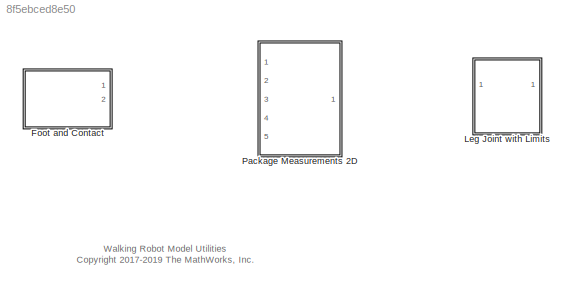
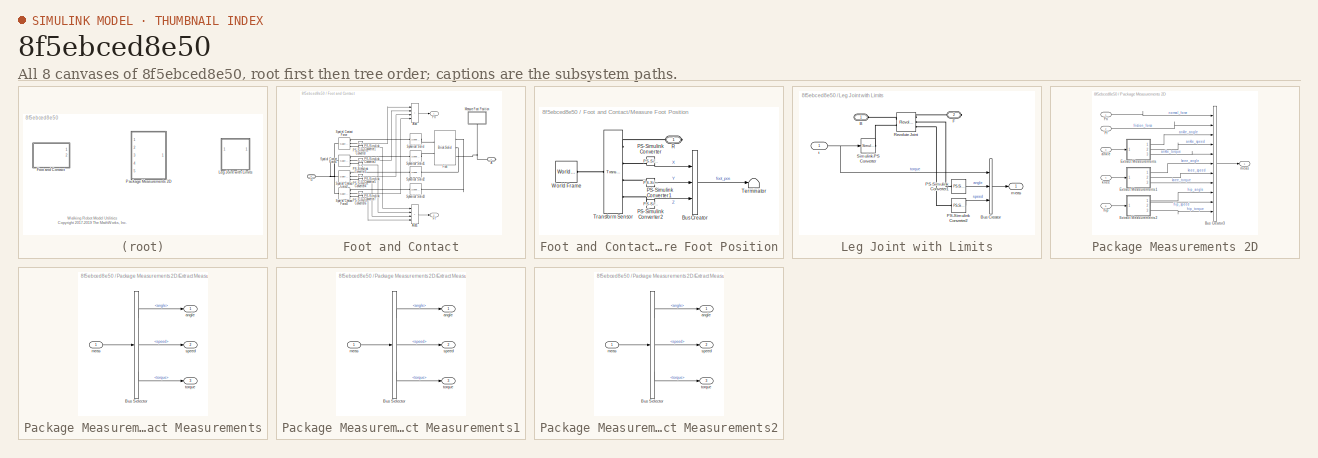
[diagram: thumbnail index - all 8 canvases of the model, root first then tree order]
MODEL slx_8f5ebced8e50
KIND library
CONFIG AbsTol = auto
CONFIG EnableMultiTasking = off
CONFIG FixedStep = auto
CONFIG MaxStep = auto
CONFIG MinStep = auto
CONFIG RelTol = 1e-3
CONFIG SampleTimeConstraint = Unconstrained
CONFIG SolverName = VariableStepAuto
CONFIG StartTime = 0.0
CONFIG StopTime = 10.0
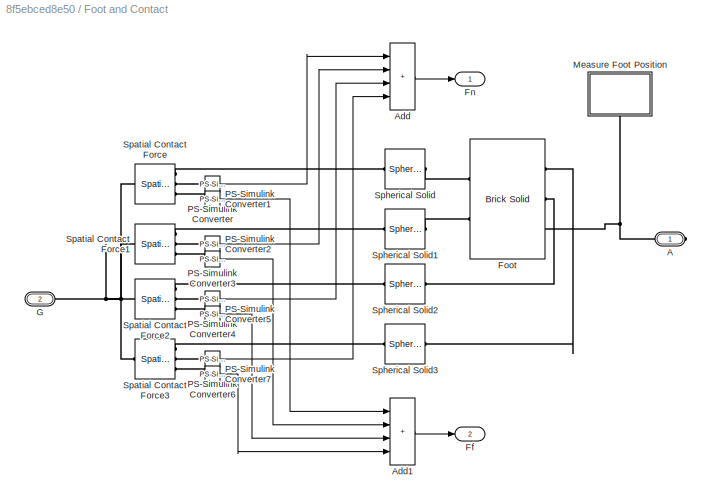
BLOCK [SubSystem] Foot and Contact
  Ports = [0, 2, 0, 0, 0, 1, 1]
  RequestExecContextInheritance = off
BLOCK [PMIOPort] Foot and Contact/A
  Side = Right
BLOCK [Sum] Foot and Contact/Add
  IconShape = rectangular
  Inputs = 4
  Ports = [4, 1]
BLOCK [Sum] Foot and Contact/Add1
  IconShape = rectangular
  Inputs = 4
  Ports = [4, 1]
BLOCK [Outport] Foot and Contact/Ff
  Port = 2
BLOCK [Outport] Foot and Contact/Fn
BLOCK [Reference] Foot and Contact/Foot  REF=sm_lib/Body Elements/Brick Solid
  Ports = [0, 0, 0, 0, 0, 3, 2]
  SourceBlock = sm_lib/Body Elements/Brick Solid
  SourceProductBaseCode = MS
  SourceType = Brick Solid
BLOCK [PMIOPort] Foot and Contact/G
  Port = 2
  Side = Left
BLOCK [SubSystem] Foot and Contact/Measure Foot Position
  NameLocation = right
  Ports = [0, 0, 0, 0, 0, 0, 1]
  RequestExecContextInheritance = off
BLOCK [BusCreator] Foot and Contact/Measure Foot Position/Bus Creator
  DisplayOption = bar
  InheritFromInputs = on
  Inputs = 3
  Ports = [3, 1]
BLOCK [Reference] Foot and Contact/Measure Foot Position/PS-Simulink Converter  REF=nesl_utility/PS-Simulink
Converter
  Ports = [0, 1, 0, 0, 0, 1]
  SourceBlock = nesl_utility/PS-Simulink\nConverter
  SourceProductBaseCode = PW,SS
  SourceType = PS-Simulink\nConverter
BLOCK [Reference] Foot and Contact/Measure Foot Position/PS-Simulink Converter1  REF=nesl_utility/PS-Simulink
Converter
  Ports = [0, 1, 0, 0, 0, 1]
  SourceBlock = nesl_utility/PS-Simulink\nConverter
  SourceProductBaseCode = PW,SS
  SourceType = PS-Simulink\nConverter
BLOCK [Reference] Foot and Contact/Measure Foot Position/PS-Simulink Converter2  REF=nesl_utility/PS-Simulink
Converter
  Ports = [0, 1, 0, 0, 0, 1]
  SourceBlock = nesl_utility/PS-Simulink\nConverter
  SourceProductBaseCode = PW,SS
  SourceType = PS-Simulink\nConverter
BLOCK [PMIOPort] Foot and Contact/Measure Foot Position/R
  Side = Right
BLOCK [Terminator] Foot and Contact/Measure Foot Position/Terminator
BLOCK [Reference] Foot and Contact/Measure Foot Position/Transform Sensor  REF=sm_lib/Frames and
Transforms/Transform
Sensor
  NameLocation = top
  Ports = [0, 0, 0, 0, 0, 1, 4]
  SourceBlock = sm_lib/Frames and\nTransforms/Transform\nSensor
  SourceProductBaseCode = MS
  SourceType = Transform\nSensor
BLOCK [Reference] Foot and Contact/Measure Foot Position/World Frame  REF=sm_lib/Frames and
Transforms/World Frame
  Ports = [0, 0, 0, 0, 0, 0, 1]
  SourceBlock = sm_lib/Frames and\nTransforms/World Frame
  SourceProductBaseCode = MS
  SourceType = World Frame
BLOCK [Reference] Foot and Contact/PS-Simulink Converter  REF=nesl_utility/PS-Simulink
Converter
  Ports = [0, 1, 0, 0, 0, 1]
  SourceBlock = nesl_utility/PS-Simulink\nConverter
  SourceProductBaseCode = PW,SS
  SourceType = PS-Simulink\nConverter
BLOCK [Reference] Foot and Contact/PS-Simulink Converter1  REF=nesl_utility/PS-Simulink
Converter
  Ports = [0, 1, 0, 0, 0, 1]
  SourceBlock = nesl_utility/PS-Simulink\nConverter
  SourceProductBaseCode = PW,SS
  SourceType = PS-Simulink\nConverter
BLOCK [Reference] Foot and Contact/PS-Simulink Converter2  REF=nesl_utility/PS-Simulink
Converter
  Ports = [0, 1, 0, 0, 0, 1]
  SourceBlock = nesl_utility/PS-Simulink\nConverter
  SourceProductBaseCode = PW,SS
  SourceType = PS-Simulink\nConverter
BLOCK [Reference] Foot and Contact/PS-Simulink Converter3  REF=nesl_utility/PS-Simulink
Converter
  Ports = [0, 1, 0, 0, 0, 1]
  SourceBlock = nesl_utility/PS-Simulink\nConverter
  SourceProductBaseCode = PW,SS
  SourceType = PS-Simulink\nConverter
BLOCK [Reference] Foot and Contact/PS-Simulink Converter4  REF=nesl_utility/PS-Simulink
Converter
  Ports = [0, 1, 0, 0, 0, 1]
  SourceBlock = nesl_utility/PS-Simulink\nConverter
  SourceProductBaseCode = PW,SS
  SourceType = PS-Simulink\nConverter
BLOCK [Reference] Foot and Contact/PS-Simulink Converter5  REF=nesl_utility/PS-Simulink
Converter
  Ports = [0, 1, 0, 0, 0, 1]
  SourceBlock = nesl_utility/PS-Simulink\nConverter
  SourceProductBaseCode = PW,SS
  SourceType = PS-Simulink\nConverter
BLOCK [Reference] Foot and Contact/PS-Simulink Converter6  REF=nesl_utility/PS-Simulink
Converter
  Ports = [0, 1, 0, 0, 0, 1]
  SourceBlock = nesl_utility/PS-Simulink\nConverter
  SourceProductBaseCode = PW,SS
  SourceType = PS-Simulink\nConverter
BLOCK [Reference] Foot and Contact/PS-Simulink Converter7  REF=nesl_utility/PS-Simulink
Converter
  Ports = [0, 1, 0, 0, 0, 1]
  SourceBlock = nesl_utility/PS-Simulink\nConverter
  SourceProductBaseCode = PW,SS
  SourceType = PS-Simulink\nConverter
BLOCK [Reference] Foot and Contact/Spatial Contact Force  REF=sm_lib/Forces and
Torques/Spatial
Contact Force
  Ports = [0, 0, 0, 0, 0, 1, 3]
  SourceBlock = sm_lib/Forces and\nTorques/Spatial\nContact Force
  SourceProductBaseCode = MS
  SourceType = Spatial\nContact Force
BLOCK [Reference] Foot and Contact/Spatial Contact Force1  REF=sm_lib/Forces and
Torques/Spatial
Contact Force
  Ports = [0, 0, 0, 0, 0, 1, 3]
  SourceBlock = sm_lib/Forces and\nTorques/Spatial\nContact Force
  SourceProductBaseCode = MS
  SourceType = Spatial\nContact Force
BLOCK [Reference] Foot and Contact/Spatial Contact Force2  REF=sm_lib/Forces and
Torques/Spatial
Contact Force
  Ports = [0, 0, 0, 0, 0, 1, 3]
  SourceBlock = sm_lib/Forces and\nTorques/Spatial\nContact Force
  SourceProductBaseCode = MS
  SourceType = Spatial\nContact Force
BLOCK [Reference] Foot and Contact/Spatial Contact Force3  REF=sm_lib/Forces and
Torques/Spatial
Contact Force
  Ports = [0, 0, 0, 0, 0, 1, 3]
  SourceBlock = sm_lib/Forces and\nTorques/Spatial\nContact Force
  SourceProductBaseCode = MS
  SourceType = Spatial\nContact Force
BLOCK [Reference] Foot and Contact/Spherical Solid  REF=sm_lib/Body Elements/Spherical Solid
  Ports = [0, 0, 0, 0, 0, 1, 1]
  SourceBlock = sm_lib/Body Elements/Spherical Solid
  SourceProductBaseCode = MS
  SourceType = Spherical Solid
BLOCK [Reference] Foot and Contact/Spherical Solid1  REF=sm_lib/Body Elements/Spherical Solid
  Ports = [0, 0, 0, 0, 0, 1, 1]
  SourceBlock = sm_lib/Body Elements/Spherical Solid
  SourceProductBaseCode = MS
  SourceType = Spherical Solid
BLOCK [Reference] Foot and Contact/Spherical Solid2  REF=sm_lib/Body Elements/Spherical Solid
  Ports = [0, 0, 0, 0, 0, 1, 1]
  SourceBlock = sm_lib/Body Elements/Spherical Solid
  SourceProductBaseCode = MS
  SourceType = Spherical Solid
BLOCK [Reference] Foot and Contact/Spherical Solid3  REF=sm_lib/Body Elements/Spherical Solid
  Ports = [0, 0, 0, 0, 0, 1, 1]
  SourceBlock = sm_lib/Body Elements/Spherical Solid
  SourceProductBaseCode = MS
  SourceType = Spherical Solid
BLOCK [SubSystem] Leg Joint with Limits
  Ports = [1, 1, 0, 0, 0, 1, 1]
  RequestExecContextInheritance = off
  VariantControl = actuatorType == 2
BLOCK [PMIOPort] Leg Joint with Limits/B
  Side = Left
BLOCK [BusCreator] Leg Joint with Limits/Bus Creator
  DisplayOption = bar
  InheritFromInputs = on
  Inputs = 3
  Ports = [3, 1]
BLOCK [PMIOPort] Leg Joint with Limits/F
  Port = 2
  Side = Right
BLOCK [Reference] Leg Joint with Limits/PS-Simulink Converter1  REF=nesl_utility/PS-Simulink
Converter
  Ports = [0, 1, 0, 0, 0, 1]
  SourceBlock = nesl_utility/PS-Simulink\nConverter
  SourceProductBaseCode = PW,SS
  SourceType = PS-Simulink\nConverter
BLOCK [Reference] Leg Joint with Limits/PS-Simulink Converter2  REF=nesl_utility/PS-Simulink
Converter
  Ports = [0, 1, 0, 0, 0, 1]
  SourceBlock = nesl_utility/PS-Simulink\nConverter
  SourceProductBaseCode = PW,SS
  SourceType = PS-Simulink\nConverter
BLOCK [Reference] Leg Joint with Limits/Revolute Joint  REF=sm_lib/Joints/Revolute Joint
  Ports = [0, 0, 0, 0, 0, 2, 3]
  SourceBlock = sm_lib/Joints/Revolute Joint
  SourceProductBaseCode = MS
  SourceType = Revolute Joint
BLOCK [Reference] Leg Joint with Limits/Simulink-PS Converter  REF=nesl_utility/Simulink-PS
Converter
  Ports = [1, 0, 0, 0, 0, 0, 1]
  SourceBlock = nesl_utility/Simulink-PS\nConverter
  SourceProductBaseCode = PW,SS
  SourceType = Simulink-PS\nConverter
BLOCK [Outport] Leg Joint with Limits/meas
  VectorParamsAs1DForOutWhenUnconnected = off
BLOCK [Inport] Leg Joint with Limits/t
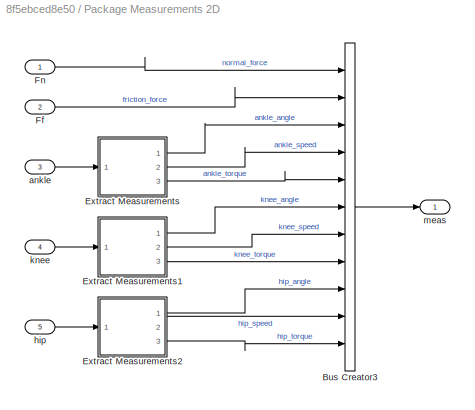
BLOCK [SubSystem] Package Measurements 2D
  Ports = [5, 1]
  RequestExecContextInheritance = off
BLOCK [BusCreator] Package Measurements 2D/Bus Creator3
  DisplayOption = bar
  InheritFromInputs = on
  Inputs = 11
  Ports = [11, 1]
BLOCK [SubSystem] Package Measurements 2D/Extract Measurements
  Ports = [1, 3]
  RequestExecContextInheritance = off
BLOCK [BusSelector] Package Measurements 2D/Extract Measurements/Bus Selector
  OutputSignals = angle,speed,torque
  Ports = [1, 3]
BLOCK [Outport] Package Measurements 2D/Extract Measurements/angle
  VectorParamsAs1DForOutWhenUnconnected = off
BLOCK [Inport] Package Measurements 2D/Extract Measurements/meas
BLOCK [Outport] Package Measurements 2D/Extract Measurements/speed
  Port = 2
  VectorParamsAs1DForOutWhenUnconnected = off
BLOCK [Outport] Package Measurements 2D/Extract Measurements/torque
  Port = 3
  VectorParamsAs1DForOutWhenUnconnected = off
BLOCK [SubSystem] Package Measurements 2D/Extract Measurements1
  Ports = [1, 3]
  RequestExecContextInheritance = off
BLOCK [BusSelector] Package Measurements 2D/Extract Measurements1/Bus Selector
  OutputSignals = angle,speed,torque
  Ports = [1, 3]
BLOCK [Outport] Package Measurements 2D/Extract Measurements1/angle
  VectorParamsAs1DForOutWhenUnconnected = off
BLOCK [Inport] Package Measurements 2D/Extract Measurements1/meas
BLOCK [Outport] Package Measurements 2D/Extract Measurements1/speed
  Port = 2
  VectorParamsAs1DForOutWhenUnconnected = off
BLOCK [Outport] Package Measurements 2D/Extract Measurements1/torque
  Port = 3
  VectorParamsAs1DForOutWhenUnconnected = off
BLOCK [SubSystem] Package Measurements 2D/Extract Measurements2
  Ports = [1, 3]
  RequestExecContextInheritance = off
BLOCK [BusSelector] Package Measurements 2D/Extract Measurements2/Bus Selector
  OutputSignals = angle,speed,torque
  Ports = [1, 3]
BLOCK [Outport] Package Measurements 2D/Extract Measurements2/angle
  VectorParamsAs1DForOutWhenUnconnected = off
BLOCK [Inport] Package Measurements 2D/Extract Measurements2/meas
BLOCK [Outport] Package Measurements 2D/Extract Measurements2/speed
  Port = 2
  VectorParamsAs1DForOutWhenUnconnected = off
BLOCK [Outport] Package Measurements 2D/Extract Measurements2/torque
  Port = 3
  VectorParamsAs1DForOutWhenUnconnected = off
BLOCK [Inport] Package Measurements 2D/Ff
  Port = 2
BLOCK [Inport] Package Measurements 2D/Fn
BLOCK [Inport] Package Measurements 2D/ankle
  Port = 3
BLOCK [Inport] Package Measurements 2D/hip
  Port = 5
BLOCK [Inport] Package Measurements 2D/knee
  Port = 4
BLOCK [Outport] Package Measurements 2D/meas
  VectorParamsAs1DForOutWhenUnconnected = off
ANNOTATION (root): Walking Robot Model Utilities <copyright redacted>
LINE Foot and Contact/Add1:1 -> Foot and Contact/Ff:1
LINE Foot and Contact/Add:1 -> Foot and Contact/Fn:1
LINE Foot and Contact/Measure Foot Position/Bus Creator:1 -> Foot and Contact/Measure Foot Position/Terminator:1
LINE Foot and Contact/Measure Foot Position/PS-Simulink Converter1:1 -> Foot and Contact/Measure Foot Position/Bus Creator:2
LINE Foot and Contact/Measure Foot Position/PS-Simulink Converter2:1 -> Foot and Contact/Measure Foot Position/Bus Creator:3
LINE Foot and Contact/Measure Foot Position/PS-Simulink Converter:1 -> Foot and Contact/Measure Foot Position/Bus Creator:1
LINE Foot and Contact/PS-Simulink Converter1:1 -> Foot and Contact/Add1:1
LINE Foot and Contact/PS-Simulink Converter2:1 -> Foot and Contact/Add:2
LINE Foot and Contact/PS-Simulink Converter3:1 -> Foot and Contact/Add1:2
LINE Foot and Contact/PS-Simulink Converter4:1 -> Foot and Contact/Add:3
LINE Foot and Contact/PS-Simulink Converter5:1 -> Foot and Contact/Add1:3
LINE Foot and Contact/PS-Simulink Converter6:1 -> Foot and Contact/Add:4
LINE Foot and Contact/PS-Simulink Converter7:1 -> Foot and Contact/Add1:4
LINE Foot and Contact/PS-Simulink Converter:1 -> Foot and Contact/Add:1
LINE Leg Joint with Limits/Bus Creator:1 -> Leg Joint with Limits/meas:1
LINE Leg Joint with Limits/PS-Simulink Converter1:1 -> Leg Joint with Limits/Bus Creator:2
LINE Leg Joint with Limits/PS-Simulink Converter2:1 -> Leg Joint with Limits/Bus Creator:3
NET Leg Joint with Limits/t:1 -> Leg Joint with Limits/Bus Creator:1, Leg Joint with Limits/Simulink-PS Converter:1
LINE Package Measurements 2D/Bus Creator3:1 -> Package Measurements 2D/meas:1
LINE Package Measurements 2D/Extract Measurements/Bus Selector:1 -> Package Measurements 2D/Extract Measurements/angle:1
LINE Package Measurements 2D/Extract Measurements/Bus Selector:2 -> Package Measurements 2D/Extract Measurements/speed:1
LINE Package Measurements 2D/Extract Measurements/Bus Selector:3 -> Package Measurements 2D/Extract Measurements/torque:1
LINE Package Measurements 2D/Extract Measurements/meas:1 -> Package Measurements 2D/Extract Measurements/Bus Selector:1
LINE Package Measurements 2D/Extract Measurements1/Bus Selector:1 -> Package Measurements 2D/Extract Measurements1/angle:1
LINE Package Measurements 2D/Extract Measurements1/Bus Selector:2 -> Package Measurements 2D/Extract Measurements1/speed:1
LINE Package Measurements 2D/Extract Measurements1/Bus Selector:3 -> Package Measurements 2D/Extract Measurements1/torque:1
LINE Package Measurements 2D/Extract Measurements1/meas:1 -> Package Measurements 2D/Extract Measurements1/Bus Selector:1
LINE Package Measurements 2D/Extract Measurements1:1 -> Package Measurements 2D/Bus Creator3:6
LINE Package Measurements 2D/Extract Measurements1:2 -> Package Measurements 2D/Bus Creator3:7
LINE Package Measurements 2D/Extract Measurements1:3 -> Package Measurements 2D/Bus Creator3:8
LINE Package Measurements 2D/Extract Measurements2/Bus Selector:1 -> Package Measurements 2D/Extract Measurements2/angle:1
LINE Package Measurements 2D/Extract Measurements2/Bus Selector:2 -> Package Measurements 2D/Extract Measurements2/speed:1
LINE Package Measurements 2D/Extract Measurements2/Bus Selector:3 -> Package Measurements 2D/Extract Measurements2/torque:1
LINE Package Measurements 2D/Extract Measurements2/meas:1 -> Package Measurements 2D/Extract Measurements2/Bus Selector:1
LINE Package Measurements 2D/Extract Measurements2:1 -> Package Measurements 2D/Bus Creator3:9
LINE Package Measurements 2D/Extract Measurements2:2 -> Package Measurements 2D/Bus Creator3:10
LINE Package Measurements 2D/Extract Measurements2:3 -> Package Measurements 2D/Bus Creator3:11
LINE Package Measurements 2D/Extract Measurements:1 -> Package Measurements 2D/Bus Creator3:3
LINE Package Measurements 2D/Extract Measurements:2 -> Package Measurements 2D/Bus Creator3:4
LINE Package Measurements 2D/Extract Measurements:3 -> Package Measurements 2D/Bus Creator3:5
LINE Package Measurements 2D/Ff:1 -> Package Measurements 2D/Bus Creator3:2
LINE Package Measurements 2D/Fn:1 -> Package Measurements 2D/Bus Creator3:1
LINE Package Measurements 2D/ankle:1 -> Package Measurements 2D/Extract Measurements:1
LINE Package Measurements 2D/hip:1 -> Package Measurements 2D/Extract Measurements2:1
LINE Package Measurements 2D/knee:1 -> Package Measurements 2D/Extract Measurements1:1
PNET net1: Foot and Contact/A:RConn1 -- Foot and Contact/Foot:LConn3 -- Foot and Contact/Measure Foot Position:RConn1
PLINE Foot and Contact/Foot:LConn1 -- Foot and Contact/Spherical Solid3:RConn1
PLINE Foot and Contact/Foot:LConn2 -- Foot and Contact/Spherical Solid2:RConn1
PLINE Foot and Contact/Foot:RConn1 -- Foot and Contact/Spherical Solid:RConn1
PLINE Foot and Contact/Foot:RConn2 -- Foot and Contact/Spherical Solid1:RConn1
PNET net2: Foot and Contact/G:RConn1 -- Foot and Contact/Spatial Contact Force1:LConn1 -- Foot and Contact/Spatial Contact Force2:LConn1 -- Foot and Contact/Spatial Contact Force3:LConn1 -- Foot and Contact/Spatial Contact Force:LConn1
PLINE Foot and Contact/Measure Foot Position/PS-Simulink Converter1:LConn1 -- Foot and Contact/Measure Foot Position/Transform Sensor:RConn3
PLINE Foot and Contact/Measure Foot Position/PS-Simulink Converter2:LConn1 -- Foot and Contact/Measure Foot Position/Transform Sensor:RConn4
PLINE Foot and Contact/Measure Foot Position/PS-Simulink Converter:LConn1 -- Foot and Contact/Measure Foot Position/Transform Sensor:RConn2
PLINE Foot and Contact/Measure Foot Position/R:RConn1 -- Foot and Contact/Measure Foot Position/Transform Sensor:RConn1
PLINE Foot and Contact/Measure Foot Position/Transform Sensor:LConn1 -- Foot and Contact/Measure Foot Position/World Frame:RConn1
PLINE Foot and Contact/PS-Simulink Converter1:LConn1 -- Foot and Contact/Spatial Contact Force:RConn3
PLINE Foot and Contact/PS-Simulink Converter2:LConn1 -- Foot and Contact/Spatial Contact Force1:RConn2
PLINE Foot and Contact/PS-Simulink Converter3:LConn1 -- Foot and Contact/Spatial Contact Force1:RConn3
PLINE Foot and Contact/PS-Simulink Converter4:LConn1 -- Foot and Contact/Spatial Contact Force2:RConn2
PLINE Foot and Contact/PS-Simulink Converter5:LConn1 -- Foot and Contact/Spatial Contact Force2:RConn3
PLINE Foot and Contact/PS-Simulink Converter6:LConn1 -- Foot and Contact/Spatial Contact Force3:RConn2
PLINE Foot and Contact/PS-Simulink Converter7:LConn1 -- Foot and Contact/Spatial Contact Force3:RConn3
PLINE Foot and Contact/PS-Simulink Converter:LConn1 -- Foot and Contact/Spatial Contact Force:RConn2
PLINE Foot and Contact/Spatial Contact Force1:RConn1 -- Foot and Contact/Spherical Solid1:LConn1
PLINE Foot and Contact/Spatial Contact Force2:RConn1 -- Foot and Contact/Spherical Solid2:LConn1
PLINE Foot and Contact/Spatial Contact Force3:RConn1 -- Foot and Contact/Spherical Solid3:LConn1
PLINE Foot and Contact/Spatial Contact Force:RConn1 -- Foot and Contact/Spherical Solid:LConn1
PLINE Leg Joint with Limits/B:RConn1 -- Leg Joint with Limits/Revolute Joint:LConn1
PLINE Leg Joint with Limits/F:RConn1 -- Leg Joint with Limits/Revolute Joint:RConn1
PLINE Leg Joint with Limits/PS-Simulink Converter1:LConn1 -- Leg Joint with Limits/Revolute Joint:RConn2
PLINE Leg Joint with Limits/PS-Simulink Converter2:LConn1 -- Leg Joint with Limits/Revolute Joint:RConn3
PLINE Leg Joint with Limits/Revolute Joint:LConn2 -- Leg Joint with Limits/Simulink-PS Converter:RConn1
note: NET lines group one-source signal fan-out (src -> all destinations, sorted); 1:1 wires keep LINE; PNET lines group multi-terminal physical nets as a canonical sorted terminal list (undirected conserving connections); 2-terminal nets keep the pairwise PLINE form
